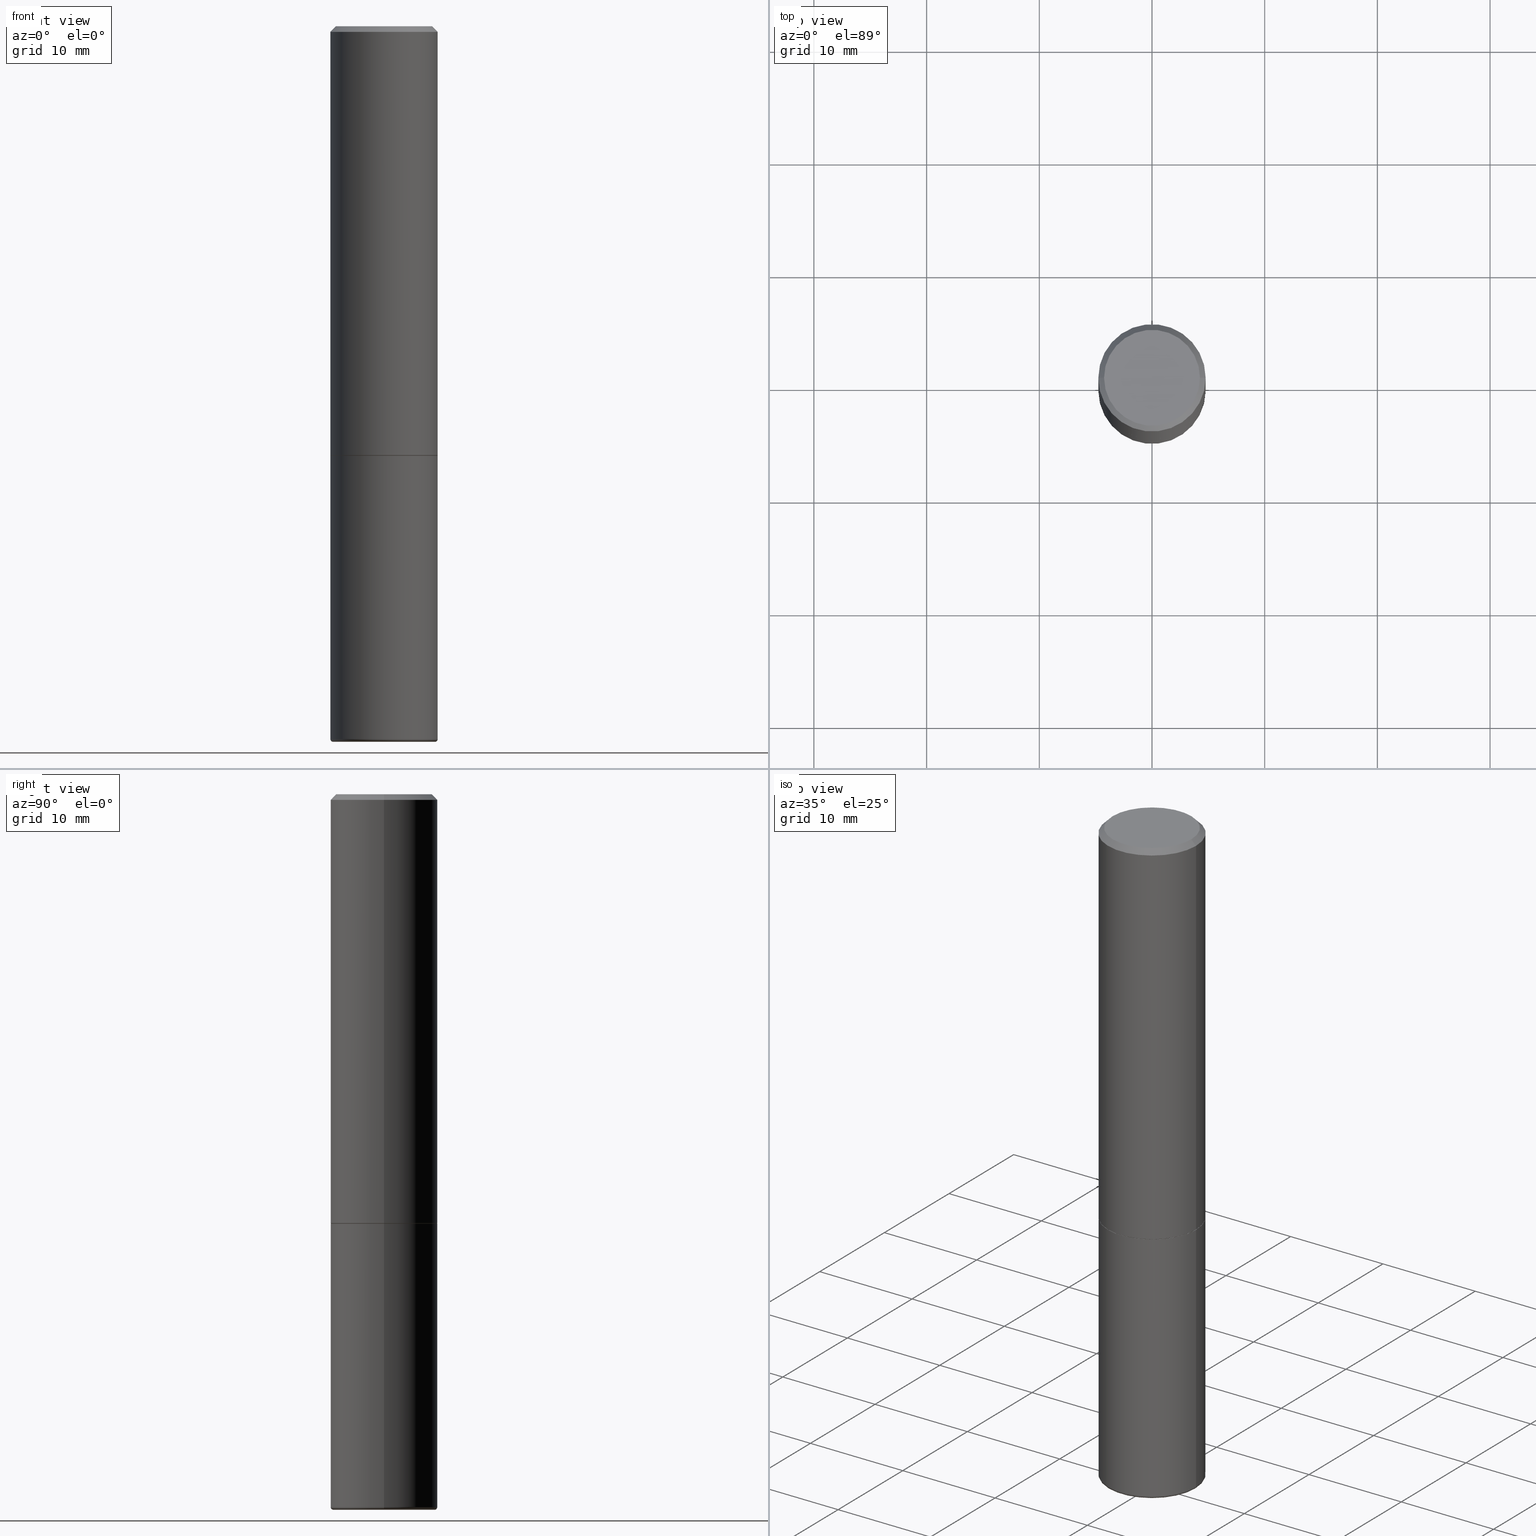
[diagram: canonical four-view strip — front | top / right | iso, engineering-drawing reading convention]
A machine part, canonical four-view strip (front | top / right | iso — engineering-drawing reading convention). The complete STEP part file that produces these views, byte-faithful:
ISO-10303-21;
HEADER;
FILE_DESCRIPTION (( 'STEP AP203' ),
    '1' );
FILE_NAME ('34776.STEP',
    '2022-11-02T20:16:07',
    ( '' ),
    ( '' ),
    'SwSTEP 2.0',
    'SolidWorks 2022',
    '' );
FILE_SCHEMA (( 'CONFIG_CONTROL_DESIGN' ));
ENDSEC;

DATA;
#1 = APPROVAL_PERSON_ORGANIZATION ( #27, #361, #67 ) ;
#2 = EDGE_LOOP ( 'NONE', ( #388, #482, #372 ) ) ;
#3 = CARTESIAN_POINT ( 'NONE',  ( 3.668203209277704895E-29, -5.237222008264718177E-15, -1.500000000000000222 ) ) ;
#4 = CARTESIAN_POINT ( 'NONE',  ( -0.1574139846450165192, -7.628878011552197220E-15, -2.499825473552769850 ) ) ;
#5 = DIRECTION ( 'NONE',  ( 1.000000000000000000, -6.982962677686269077E-15, 4.883557194083112901E-29 ) ) ;
#6 = DIRECTION ( 'NONE',  ( -1.000000000000000000, 6.982962677686265922E-15, 0.000000000000000000 ) ) ;
#7 = CIRCLE ( 'NONE', #485, 0.1574139846450165192 ) ;
#8 = ORIENTED_EDGE ( 'NONE', *, *, #346, .T. ) ;
#9 = DIRECTION ( 'NONE',  ( -0.9993908270190957621, 6.856857904024558837E-15, -0.03489949670250019204 ) ) ;
#10 = DIRECTION ( 'NONE',  ( 1.000000000000000000, -6.982962677686271444E-15, 0.000000000000000000 ) ) ;
#11 = DIRECTION ( 'NONE',  ( -1.000000000000000000, 6.982962677686262766E-15, 0.000000000000000000 ) ) ;
#12 = CARTESIAN_POINT ( 'NONE',  ( 3.668203209277704895E-29, -5.237222008264718177E-15, -1.500000000000000222 ) ) ;
#13 = ADVANCED_BREP_SHAPE_REPRESENTATION ( '34776', ( #249, #407, #324 ), #204 ) ;
#14 = CARTESIAN_POINT ( 'NONE',  ( -0.1774127346450165010, -7.489836842535454975E-15, -2.499999999999999556 ) ) ;
#15 = ORIENTED_EDGE ( 'NONE', *, *, #207, .F. ) ;
#16 = AXIS2_PLACEMENT_3D ( 'NONE', #358, #465, #479 ) ;
#17 = DIRECTION ( 'NONE',  ( -2.445468806185136597E-29, 3.491481338843145583E-15, 1.000000000000000000 ) ) ;
#18 = DATE_AND_TIME ( #325, #215 ) ;
#19 = EDGE_CURVE ( 'NONE', #432, #298, #376, .T. ) ;
#20 = VERTEX_POINT ( 'NONE', #304 ) ;
#21 = ADVANCED_FACE ( 'NONE', ( #374 ), #489, .F. ) ;
#22 = AXIS2_PLACEMENT_3D ( 'NONE', #230, #192, #449 ) ;
#23 = CIRCLE ( 'NONE', #90, 0.1674999999999994549 ) ;
#24 = CALENDAR_DATE ( 2022, 2, 11 ) ;
#25 = DATE_TIME_ROLE ( 'classification_date' ) ;
#26 = PERSON_AND_ORGANIZATION ( #306, #461 ) ;
#27 = PERSON_AND_ORGANIZATION ( #306, #461 ) ;
#28 = CIRCLE ( 'NONE', #133, 0.1674999999999994549 ) ;
#29 = CC_DESIGN_APPROVAL ( #164, ( #47 ) ) ;
#30 = SECURITY_CLASSIFICATION_LEVEL ( 'unclassified' ) ;
#31 = CC_DESIGN_PERSON_AND_ORGANIZATION_ASSIGNMENT ( #341, #202, ( #47 ) ) ;
#32 = DIRECTION ( 'NONE',  ( -2.445468806185136597E-29, 3.491481338843145583E-15, 1.000000000000000000 ) ) ;
#33 = PERSON_AND_ORGANIZATION_ROLE ( 'creator' ) ;
#34 = DIRECTION ( 'NONE',  ( 0.7071067811865465735, -7.319954787623252890E-15, -0.7071067811865484609 ) ) ;
#35 = LINE ( 'NONE', #116, #61 ) ;
#36 = COORDINATED_UNIVERSAL_TIME_OFFSET ( 5, 0, .BEHIND. ) ;
#37 = DIRECTION ( 'NONE',  ( -2.445468806185136597E-29, 3.491481338843145583E-15, 1.000000000000000000 ) ) ;
#38 = EDGE_LOOP ( 'NONE', ( #102, #232, #272, #124 ) ) ;
#39 = ORIENTED_EDGE ( 'NONE', *, *, #271, .F. ) ;
#40 = DIRECTION ( 'NONE',  ( 1.000000000000000000, -6.982962677686271444E-15, 0.000000000000000000 ) ) ;
#41 = DIRECTION ( 'NONE',  ( -2.445468806185136597E-29, 3.491481338843145583E-15, 1.000000000000000000 ) ) ;
#42 = DIRECTION ( 'NONE',  ( 2.445468806185136597E-29, -3.491481338843145583E-15, -1.000000000000000000 ) ) ;
#43 = APPLICATION_CONTEXT ( 'configuration controlled 3d designs of mechanical parts and assemblies' ) ;
#44 = DIRECTION ( 'NONE',  ( -2.445468806185136597E-29, 3.491481338843145583E-15, 1.000000000000000000 ) ) ;
#45 = AXIS2_PLACEMENT_3D ( 'NONE', #419, #59, #63 ) ;
#46 = VERTEX_POINT ( 'NONE', #161 ) ;
#47 = PRODUCT_DEFINITION ( 'UNKNOWN', '', #196, #454 ) ;
#48 = DIRECTION ( 'NONE',  ( -2.445468806185136597E-29, 3.491481338843145583E-15, 1.000000000000000000 ) ) ;
#49 = SECURITY_CLASSIFICATION ( '', '', #30 ) ;
#50 = CYLINDRICAL_SURFACE ( 'NONE', #261, 0.1874999999999996392 ) ;
#51 = UNCERTAINTY_MEASURE_WITH_UNIT (LENGTH_MEASURE( 1.000000000000000082E-05 ), #395, 'distance_accuracy_value', 'NONE');
#52 = ADVANCED_FACE ( 'NONE', ( #307 ), #113, .T. ) ;
#53 = ORIENTED_EDGE ( 'NONE', *, *, #91, .F. ) ;
#54 = ORIENTED_EDGE ( 'NONE', *, *, #81, .T. ) ;
#55 = ADVANCED_FACE ( 'NONE', ( #269 ), #156, .F. ) ;
#56 = DIRECTION ( 'NONE',  ( 1.000000000000000000, -6.982962677686184669E-15, 0.000000000000000000 ) ) ;
#57 = DIRECTION ( 'NONE',  ( 1.000000000000000000, -6.982962677686269077E-15, 0.000000000000000000 ) ) ;
#58 = VERTEX_POINT ( 'NONE', #471 ) ;
#59 = DIRECTION ( 'NONE',  ( -2.445468806185136597E-29, 3.491481338843145583E-15, 1.000000000000000000 ) ) ;
#60 = DIRECTION ( 'NONE',  ( -2.445468806185136877E-29, 3.491481338843145188E-15, 1.000000000000000000 ) ) ;
#61 = VECTOR ( 'NONE', #34, 39.37007874015748143 ) ;
#62 = VECTOR ( 'NONE', #127, 39.37007874015748143 ) ;
#63 = DIRECTION ( 'NONE',  ( 1.000000000000000000, -6.982962677686267499E-15, 4.876176775795935232E-29 ) ) ;
#64 = VERTEX_POINT ( 'NONE', #139 ) ;
#65 = DIRECTION ( 'NONE',  ( 1.000000000000000000, -6.982962677686264344E-15, 0.000000000000000000 ) ) ;
#66 = FACE_OUTER_BOUND ( 'NONE', #245, .T. ) ;
#67 = APPROVAL_ROLE ( '' ) ;
#68 = APPROVAL_ROLE ( '' ) ;
#69 = ADVANCED_FACE ( 'NONE', ( #351 ), #258, .T. ) ;
#70 = DIRECTION ( 'NONE',  ( -0.7071067811865465735, 2.468850131082246805E-15, -0.7071067811865484609 ) ) ;
#71 = EDGE_LOOP ( 'NONE', ( #416, #123 ) ) ;
#72 = CONICAL_SURFACE ( 'NONE', #120, 0.1874999999999995004, 0.7853981633974469467 ) ;
#73 = ORIENTED_EDGE ( 'NONE', *, *, #478, .T. ) ;
#74 = CIRCLE ( 'NONE', #295, 0.1874999999999995837 ) ;
#75 = DIRECTION ( 'NONE',  ( -1.000000000000000000, 7.105427357600977404E-15, 0.000000000000000000 ) ) ;
#76 = DIRECTION ( 'NONE',  ( 1.000000000000000000, -6.982962677686267499E-15, 4.876176775795935232E-29 ) ) ;
#77 = AXIS2_PLACEMENT_3D ( 'NONE', #136, #288, #138 ) ;
#78 = APPLICATION_CONTEXT ( 'configuration controlled 3d designs of mechanical parts and assemblies' ) ;
#79 = ORIENTED_EDGE ( 'NONE', *, *, #333, .F. ) ;
#80 = ORIENTED_EDGE ( 'NONE', *, *, #157, .T. ) ;
#81 = EDGE_CURVE ( 'NONE', #463, #457, #462, .T. ) ;
#82 = DIRECTION ( 'NONE',  ( 1.000000000000000000, -6.982962677686267499E-15, 4.876176775795935232E-29 ) ) ;
#83 = CARTESIAN_POINT ( 'NONE',  ( 0.1874999999999996392, -1.309305502066172642E-15, 9.142831454617361395E-30 ) ) ;
#84 = VECTOR ( 'NONE', #312, 39.37007874015748143 ) ;
#85 = CARTESIAN_POINT ( 'NONE',  ( 6.097968700781052334E-29, -8.711527264429354071E-15, -2.494328456080204148 ) ) ;
#86 = DIRECTION ( 'NONE',  ( -2.445468806185136597E-29, 3.491481338843145583E-15, 1.000000000000000000 ) ) ;
#87 = ORIENTED_EDGE ( 'NONE', *, *, #483, .T. ) ;
#88 = CARTESIAN_POINT ( 'NONE',  ( -0.1874999999999996392, 1.332267629550185285E-15, -9.223003294227931175E-30 ) ) ;
#89 = CC_DESIGN_PERSON_AND_ORGANIZATION_ASSIGNMENT ( #194, #145, ( #467 ) ) ;
#90 = AXIS2_PLACEMENT_3D ( 'NONE', #205, #338, #132 ) ;
#91 = EDGE_CURVE ( 'NONE', #444, #58, #35, .T. ) ;
#92 = VERTEX_POINT ( 'NONE', #155 ) ;
#93 = DIRECTION ( 'NONE',  ( 1.000000000000000000, -6.982962677686264344E-15, 0.000000000000000000 ) ) ;
#94 = APPROVAL_PERSON_ORGANIZATION ( #117, #164, #112 ) ;
#95 = CARTESIAN_POINT ( 'NONE',  ( 3.668203209277704895E-29, -5.237222008264718177E-15, -1.500000000000000222 ) ) ;
#96 = LINE ( 'NONE', #315, #84 ) ;
#97 = EDGE_LOOP ( 'NONE', ( #208, #487, #421, #375 ) ) ;
#98 = LINE ( 'NONE', #364, #335 ) ;
#99 = CONICAL_SURFACE ( 'NONE', #273, 0.1864999999999996938, 0.7853981633974141952 ) ;
#100 = CARTESIAN_POINT ( 'NONE',  ( 0.1874999999999995837, -1.000309536523471494E-14, -2.490000380769358479 ) ) ;
#101 = APPROVAL_STATUS ( 'not_yet_approved' ) ;
#102 = ORIENTED_EDGE ( 'NONE', *, *, #415, .T. ) ;
#103 = TOROIDAL_SURFACE ( 'NONE', #195, 0.1775000000000001854, 0.009999999999999658468 ) ;
#104 = DIRECTION ( 'NONE',  ( 1.000000000000000000, -6.982962677686269077E-15, 4.883557194083112901E-29 ) ) ;
#105 = DIRECTION ( 'NONE',  ( 0.000000000000000000, 0.000000000000000000, 1.000000000000000000 ) ) ;
#106 = EDGE_CURVE ( 'NONE', #302, #457, #439, .T. ) ;
#107 = VERTEX_POINT ( 'NONE', #85 ) ;
#108 = ADVANCED_FACE ( 'NONE', ( #213 ), #99, .T. ) ;
#109 = PERSON_AND_ORGANIZATION_ROLE ( 'design_supplier' ) ;
#110 = ORIENTED_EDGE ( 'NONE', *, *, #244, .F. ) ;
#111 = AXIS2_PLACEMENT_3D ( 'NONE', #209, #235, #11 ) ;
#112 = APPROVAL_ROLE ( '' ) ;
#113 = CYLINDRICAL_SURFACE ( 'NONE', #360, 0.1874999999999996392 ) ;
#114 = CARTESIAN_POINT ( 'NONE',  ( -0.1874999999999995837, -5.633238306166445543E-15, -2.490000380769358479 ) ) ;
#115 = CARTESIAN_POINT ( 'NONE',  ( 0.000000000000000000, 0.000000000000000000, 0.000000000000000000 ) ) ;
#116 = CARTESIAN_POINT ( 'NONE',  ( 0.1874999999999995004, -1.356173001359022113E-15, -0.02000000000000011144 ) ) ;
#117 = PERSON_AND_ORGANIZATION ( #306, #461 ) ;
#118 = ORIENTED_EDGE ( 'NONE', *, *, #106, .F. ) ;
#119 = ADVANCED_FACE ( 'NONE', ( #172 ), #72, .T. ) ;
#120 = AXIS2_PLACEMENT_3D ( 'NONE', #340, #389, #355 ) ;
#121 = CARTESIAN_POINT ( 'NONE',  ( 3.668203209277704895E-29, -5.237222008264718177E-15, -1.500000000000000222 ) ) ;
#122 = CARTESIAN_POINT ( 'NONE',  ( 3.668203209277704895E-29, -5.237222008264718177E-15, -1.500000000000000222 ) ) ;
#123 = ORIENTED_EDGE ( 'NONE', *, *, #254, .T. ) ;
#124 = ORIENTED_EDGE ( 'NONE', *, *, #81, .F. ) ;
#125 = EDGE_CURVE ( 'NONE', #20, #58, #179, .T. ) ;
#126 = LINE ( 'NONE', #88, #440 ) ;
#127 = DIRECTION ( 'NONE',  ( 0.9993908270190957621, -6.978169709227539121E-15, -0.03489949670250019204 ) ) ;
#128 = CARTESIAN_POINT ( 'NONE',  ( 6.089218258560578567E-29, -8.693789863168541507E-15, -2.490000380769358479 ) ) ;
#129 = EDGE_LOOP ( 'NONE', ( #135, #229, #224, #363 ) ) ;
#130 = EDGE_LOOP ( 'NONE', ( #403, #256, #134, #79 ) ) ;
#131 = CARTESIAN_POINT ( 'NONE',  ( -1.043851414335219820E-46, 1.490343170380447200E-32, 4.268512490100411279E-18 ) ) ;
#132 = DIRECTION ( 'NONE',  ( 1.000000000000000000, -6.982962677686265133E-15, 4.875936752492908897E-29 ) ) ;
#133 = AXIS2_PLACEMENT_3D ( 'NONE', #131, #143, #331 ) ;
#134 = ORIENTED_EDGE ( 'NONE', *, *, #451, .F. ) ;
#135 = ORIENTED_EDGE ( 'NONE', *, *, #147, .T. ) ;
#136 = CARTESIAN_POINT ( 'NONE',  ( 3.665757740471519853E-29, -5.233730526925875958E-15, -1.499000000000000110 ) ) ;
#137 = ADVANCED_FACE ( 'NONE', ( #474 ), #103, .T. ) ;
#138 = DIRECTION ( 'NONE',  ( 1.000000000000000000, -6.982962677686264344E-15, 0.000000000000000000 ) ) ;
#139 = CARTESIAN_POINT ( 'NONE',  ( 0.1874999999999996947, -6.543036028992048600E-15, -1.499000000000000110 ) ) ;
#140 = DIRECTION ( 'NONE',  ( 1.000000000000000000, -6.982962677686262766E-15, 0.000000000000000000 ) ) ;
#141 =( NAMED_UNIT ( * ) SI_UNIT ( $, .STERADIAN. ) SOLID_ANGLE_UNIT ( ) );
#142 = DATE_AND_TIME ( #476, #246 ) ;
#143 = DIRECTION ( 'NONE',  ( -2.445468806185136597E-29, 3.491481338843145583E-15, 1.000000000000000000 ) ) ;
#144 = VERTEX_POINT ( 'NONE', #276 ) ;
#145 = PERSON_AND_ORGANIZATION_ROLE ( 'design_owner' ) ;
#146 = DIRECTION ( 'NONE',  ( 1.000000000000000000, -6.982962677686262766E-15, 0.000000000000000000 ) ) ;
#147 = EDGE_CURVE ( 'NONE', #484, #144, #378, .T. ) ;
#148 = ORIENTED_EDGE ( 'NONE', *, *, #19, .T. ) ;
#149 = DIRECTION ( 'NONE',  ( -0.7071067811865232589, 7.493145998870265808E-15, 0.7071067811865715536 ) ) ;
#150 = CARTESIAN_POINT ( 'NONE',  ( 6.089218258560578567E-29, -8.693789863168541507E-15, -2.490000380769358479 ) ) ;
#151 = AXIS2_PLACEMENT_3D ( 'NONE', #292, #265, #75 ) ;
#152 = CARTESIAN_POINT ( 'NONE',  ( 0.000000000000000000, 0.000000000000000000, 0.000000000000000000 ) ) ;
#153 = APPROVAL_DATE_TIME ( #438, #361 ) ;
#154 = CARTESIAN_POINT ( 'NONE',  ( 6.089218258560578567E-29, -8.693789863168541507E-15, -2.490000380769358479 ) ) ;
#155 = CARTESIAN_POINT ( 'NONE',  ( -0.1874999999999996947, -5.633238306166445543E-15, -1.500000000000000222 ) ) ;
#156 = CONICAL_SURFACE ( 'NONE', #332, 0.1574139846450165192, 1.535889741755010807 ) ;
#157 = EDGE_CURVE ( 'NONE', #457, #302, #252, .T. ) ;
#158 = DIRECTION ( 'NONE',  ( -1.000000000000000000, 6.982962677686265922E-15, 0.000000000000000000 ) ) ;
#159 = CIRCLE ( 'NONE', #151, 0.009999999999999654998 ) ;
#160 = DATE_AND_TIME ( #491, #412 ) ;
#161 = CARTESIAN_POINT ( 'NONE',  ( 0.1874999999999996947, -6.546527510330890818E-15, -1.500000000000000222 ) ) ;
#162 = EDGE_LOOP ( 'NONE', ( #447, #279, #468, #175 ) ) ;
#163 = CARTESIAN_POINT ( 'NONE',  ( 0.1574139846450165192, -9.808032317752600483E-15, -2.499825473552769850 ) ) ;
#164 = APPROVAL ( #446, 'UNSPECIFIED' ) ;
#165 = CARTESIAN_POINT ( 'NONE',  ( 0.1775000000000001854, -9.933265738457854795E-15, -2.490000380769358479 ) ) ;
#166 = CLOSED_SHELL ( 'NONE', ( #413, #137, #452, #268, #55, #187, #52, #370, #460 ) ) ;
#167 = CARTESIAN_POINT ( 'NONE',  ( -0.1574139846450165192, -7.628878011552197220E-15, -2.499825473552769850 ) ) ;
#168 = AXIS2_PLACEMENT_3D ( 'NONE', #443, #193, #158 ) ;
#169 = COORDINATED_UNIVERSAL_TIME_OFFSET ( 5, 0, .BEHIND. ) ;
#170 = EDGE_LOOP ( 'NONE', ( #15, #73, #377, #257 ) ) ;
#171 = CARTESIAN_POINT ( 'NONE',  ( 6.113245216480286544E-29, -8.728093991274226772E-15, -2.499825473552769850 ) ) ;
#172 = FACE_OUTER_BOUND ( 'NONE', #191, .T. ) ;
#173 = FACE_OUTER_BOUND ( 'NONE', #383, .T. ) ;
#174 = ORIENTED_EDGE ( 'NONE', *, *, #390, .F. ) ;
#175 = ORIENTED_EDGE ( 'NONE', *, *, #125, .F. ) ;
#176 = LINE ( 'NONE', #163, #62 ) ;
#177 = ORIENTED_EDGE ( 'NONE', *, *, #183, .F. ) ;
#178 = AXIS2_PLACEMENT_3D ( 'NONE', #424, #285, #251 ) ;
#179 = CIRCLE ( 'NONE', #259, 0.1874999999999995004 ) ;
#180 = CARTESIAN_POINT ( 'NONE',  ( 4.890937612370301184E-31, -6.982962677686329819E-17, -0.02000000000000011144 ) ) ;
#181 =( NAMED_UNIT ( * ) PLANE_ANGLE_UNIT ( ) SI_UNIT ( $, .RADIAN. ) );
#182 = CARTESIAN_POINT ( 'NONE',  ( 0.1674999999999994549, -1.252653207992874936E-15, 4.268512490108880748E-18 ) ) ;
#183 = EDGE_CURVE ( 'NONE', #302, #432, #223, .T. ) ;
#184 = APPROVAL_DATE_TIME ( #18, #217 ) ;
#185 = CLOSED_SHELL ( 'NONE', ( #108, #231, #69, #119, #437, #287, #366, #21 ) ) ;
#186 = CIRCLE ( 'NONE', #303, 0.1874999999999996947 ) ;
#187 = ADVANCED_FACE ( 'NONE', ( #385 ), #274, .F. ) ;
#188 = COORDINATED_UNIVERSAL_TIME_OFFSET ( 5, 0, .BEHIND. ) ;
#189 = LENGTH_MEASURE_WITH_UNIT ( LENGTH_MEASURE( 0.02539999999999999897 ), #253 );
#190 = CIRCLE ( 'NONE', #327, 0.1874999999999996947 ) ;
#191 = EDGE_LOOP ( 'NONE', ( #53, #326, #87, #320 ) ) ;
#192 = DIRECTION ( 'NONE',  ( 2.438088387897960049E-29, -3.491481338843145188E-15, -1.000000000000000000 ) ) ;
#193 = DIRECTION ( 'NONE',  ( 2.445468806185136597E-29, -3.491481338843145583E-15, -1.000000000000000000 ) ) ;
#194 = PERSON_AND_ORGANIZATION ( #306, #461 ) ;
#195 = AXIS2_PLACEMENT_3D ( 'NONE', #314, #200, #5 ) ;
#196 = PRODUCT_DEFINITION_FORMATION_WITH_SPECIFIED_SOURCE ( 'ANY', '', #467, .NOT_KNOWN. ) ;
#197 = FACE_OUTER_BOUND ( 'NONE', #130, .T. ) ;
#198 = CARTESIAN_POINT ( 'NONE',  ( 3.668203209277704895E-29, -5.237222008264718177E-15, -1.500000000000000222 ) ) ;
#199 = EDGE_CURVE ( 'NONE', #484, #64, #349, .T. ) ;
#200 = DIRECTION ( 'NONE',  ( -2.445468806185136597E-29, 3.491481338843145583E-15, 1.000000000000000000 ) ) ;
#201 = AXIS2_PLACEMENT_3D ( 'NONE', #392, #214, #65 ) ;
#202 = PERSON_AND_ORGANIZATION_ROLE ( 'creator' ) ;
#203 = ORIENTED_EDGE ( 'NONE', *, *, #207, .T. ) ;
#204 =( GEOMETRIC_REPRESENTATION_CONTEXT ( 3 ) GLOBAL_UNCERTAINTY_ASSIGNED_CONTEXT ( ( #51 ) ) GLOBAL_UNIT_ASSIGNED_CONTEXT ( ( #395, #181, #141 ) ) REPRESENTATION_CONTEXT ( 'NONE', 'WORKASPACE' ) );
#205 = CARTESIAN_POINT ( 'NONE',  ( -1.043851414335219820E-46, 1.490343170380447200E-32, 4.268512490100411279E-18 ) ) ;
#206 = CARTESIAN_POINT ( 'NONE',  ( 0.000000000000000000, 0.000000000000000000, 0.000000000000000000 ) ) ;
#207 = EDGE_CURVE ( 'NONE', #298, #92, #126, .T. ) ;
#208 = ORIENTED_EDGE ( 'NONE', *, *, #490, .F. ) ;
#209 = CARTESIAN_POINT ( 'NONE',  ( 6.113245216480286544E-29, -8.728093991274226772E-15, -2.499825473552769850 ) ) ;
#210 = CYLINDRICAL_SURFACE ( 'NONE', #45, 0.1874999999999996114 ) ;
#211 = EDGE_LOOP ( 'NONE', ( #433, #80, #348, #212 ) ) ;
#212 = ORIENTED_EDGE ( 'NONE', *, *, #478, .F. ) ;
#213 = FACE_OUTER_BOUND ( 'NONE', #129, .T. ) ;
#214 = DIRECTION ( 'NONE',  ( -2.445468806185136597E-29, 3.491481338843145583E-15, 1.000000000000000000 ) ) ;
#215 = LOCAL_TIME ( 16, 16, 7.000000000000000000, #188 ) ;
#216 = FACE_OUTER_BOUND ( 'NONE', #211, .T. ) ;
#217 = APPROVAL ( #101, 'UNSPECIFIED' ) ;
#218 = EDGE_CURVE ( 'NONE', #466, #444, #28, .T. ) ;
#219 = COORDINATED_UNIVERSAL_TIME_OFFSET ( 5, 0, .BEHIND. ) ;
#220 = APPLICATION_PROTOCOL_DEFINITION ( 'international standard', 'config_control_design', 1994, #78 ) ;
#221 = ORIENTED_EDGE ( 'NONE', *, *, #451, .T. ) ;
#222 = CARTESIAN_POINT ( 'NONE',  ( 0.1864999999999996938, -6.539544547653205593E-15, -1.500000000000000222 ) ) ;
#223 = CIRCLE ( 'NONE', #470, 0.009999999999999654998 ) ;
#224 = ORIENTED_EDGE ( 'NONE', *, *, #425, .F. ) ;
#225 = EDGE_CURVE ( 'NONE', #107, #402, #176, .T. ) ;
#226 = CARTESIAN_POINT ( 'NONE',  ( 0.1774127346450165010, -9.945843057919171254E-15, -2.499999999999999556 ) ) ;
#227 = DIRECTION ( 'NONE',  ( 1.000000000000000000, -6.982962677686268288E-15, 0.000000000000000000 ) ) ;
#228 = TOROIDAL_SURFACE ( 'NONE', #293, 0.1775000000000001854, 0.009999999999999658468 ) ;
#229 = ORIENTED_EDGE ( 'NONE', *, *, #490, .T. ) ;
#230 = CARTESIAN_POINT ( 'NONE',  ( 1.169646248512445651E-15, 0.1674999999999994549, -5.826888680111746828E-16 ) ) ;
#231 = ADVANCED_FACE ( 'NONE', ( #197 ), #453, .T. ) ;
#232 = ORIENTED_EDGE ( 'NONE', *, *, #390, .T. ) ;
#233 = AXIS2_PLACEMENT_3D ( 'NONE', #337, #37, #10 ) ;
#234 = CONICAL_SURFACE ( 'NONE', #282, 0.1864999999999996938, 0.7853981633974141952 ) ;
#235 = DIRECTION ( 'NONE',  ( 2.445468806185136597E-29, -3.491481338843145583E-15, -1.000000000000000000 ) ) ;
#236 = DIRECTION ( 'NONE',  ( -1.000000000000000000, 6.982962677686262766E-15, 0.000000000000000000 ) ) ;
#237 = FACE_OUTER_BOUND ( 'NONE', #97, .T. ) ;
#238 = DIRECTION ( 'NONE',  ( 2.438088387897960049E-29, -3.491481338843145188E-15, -1.000000000000000000 ) ) ;
#239 = DIRECTION ( 'NONE',  ( -2.445468806185136597E-29, 3.491481338843145583E-15, 1.000000000000000000 ) ) ;
#240 = ORIENTED_EDGE ( 'NONE', *, *, #291, .F. ) ;
#241 = ORIENTED_EDGE ( 'NONE', *, *, #319, .T. ) ;
#242 = DIRECTION ( 'NONE',  ( 1.000000000000000000, -6.982962677686269077E-15, 0.000000000000000000 ) ) ;
#243 = AXIS2_PLACEMENT_3D ( 'NONE', #414, #238, #381 ) ;
#244 = EDGE_CURVE ( 'NONE', #432, #46, #456, .T. ) ;
#245 = EDGE_LOOP ( 'NONE', ( #148, #203, #39, #110 ) ) ;
#246 = LOCAL_TIME ( 16, 16, 7.000000000000000000, #365 ) ;
#247 = DIRECTION ( 'NONE',  ( -2.445468806185136597E-29, 3.491481338843145583E-15, 1.000000000000000000 ) ) ;
#248 = DIRECTION ( 'NONE',  ( 1.000000000000000000, -6.982962677686269077E-15, 0.000000000000000000 ) ) ;
#249 = MANIFOLD_SOLID_BREP ( 'Body-Move/Copy2[1]', #166 ) ;
#250 = CARTESIAN_POINT ( 'NONE',  ( -0.1874999999999995004, 1.239475875289308357E-15, -0.02000000000000011144 ) ) ;
#251 = DIRECTION ( 'NONE',  ( -1.000000000000000000, 6.982962677686267499E-15, 0.000000000000000000 ) ) ;
#252 = CIRCLE ( 'NONE', #393, 0.1774127346450165010 ) ;
#253 =( LENGTH_UNIT ( ) NAMED_UNIT ( * ) SI_UNIT ( $, .METRE. ) );
#254 = EDGE_CURVE ( 'NONE', #444, #466, #23, .T. ) ;
#255 = DIRECTION ( 'NONE',  ( -2.445468806185136597E-29, 3.491481338843145583E-15, 1.000000000000000000 ) ) ;
#256 = ORIENTED_EDGE ( 'NONE', *, *, #339, .T. ) ;
#257 = ORIENTED_EDGE ( 'NONE', *, *, #319, .F. ) ;
#258 = CONICAL_SURFACE ( 'NONE', #178, 0.1874999999999995004, 0.7853981633974469467 ) ;
#259 = AXIS2_PLACEMENT_3D ( 'NONE', #180, #380, #423 ) ;
#260 = DIRECTION ( 'NONE',  ( 1.000000000000000000, -6.982962677686269077E-15, 0.000000000000000000 ) ) ;
#261 = AXIS2_PLACEMENT_3D ( 'NONE', #206, #262, #76 ) ;
#262 = DIRECTION ( 'NONE',  ( -2.445468806185136597E-29, 3.491481338843145583E-15, 1.000000000000000000 ) ) ;
#263 = DIMENSIONAL_EXPONENTS ( 1.000000000000000000, 0.000000000000000000, 0.000000000000000000, 0.000000000000000000, 0.000000000000000000, 0.000000000000000000, 0.000000000000000000 ) ;
#264 = APPROVAL_PERSON_ORGANIZATION ( #26, #217, #68 ) ;
#265 = DIRECTION ( 'NONE',  ( 7.105427357601001859E-15, 1.000000000000000000, -3.491481338843145583E-15 ) ) ;
#266 = CC_DESIGN_DATE_AND_TIME_ASSIGNMENT ( #426, #368, ( #47 ) ) ;
#267 = CIRCLE ( 'NONE', #400, 0.1874999999999995004 ) ;
#268 = ADVANCED_FACE ( 'NONE', ( #350 ), #384, .F. ) ;
#269 = FACE_OUTER_BOUND ( 'NONE', #316, .T. ) ;
#270 = LOCAL_TIME ( 16, 16, 7.000000000000000000, #219 ) ;
#271 = EDGE_CURVE ( 'NONE', #46, #92, #190, .T. ) ;
#272 = ORIENTED_EDGE ( 'NONE', *, *, #157, .F. ) ;
#273 = AXIS2_PLACEMENT_3D ( 'NONE', #95, #281, #248 ) ;
#274 = PLANE ( 'NONE',  #243 ) ;
#275 = CARTESIAN_POINT ( 'NONE',  ( -0.1674999999999994549, 1.204561061900876905E-15, 4.268512490092109750E-18 ) ) ;
#276 = CARTESIAN_POINT ( 'NONE',  ( -0.1864999999999996938, -3.906761351723911301E-15, -1.500000000000000222 ) ) ;
#277 = ORIENTED_EDGE ( 'NONE', *, *, #346, .F. ) ;
#278 = CC_DESIGN_PERSON_AND_ORGANIZATION_ASSIGNMENT ( #280, #109, ( #196 ) ) ;
#279 = ORIENTED_EDGE ( 'NONE', *, *, #431, .T. ) ;
#280 = PERSON_AND_ORGANIZATION ( #306, #461 ) ;
#281 = DIRECTION ( 'NONE',  ( -2.445468806185136597E-29, 3.491481338843145583E-15, 1.000000000000000000 ) ) ;
#282 = AXIS2_PLACEMENT_3D ( 'NONE', #3, #41, #57 ) ;
#283 = DIRECTION ( 'NONE',  ( 1.000000000000000000, -6.982962677686264344E-15, 0.000000000000000000 ) ) ;
#284 = PRODUCT_DEFINITION_SHAPE ( 'NONE', 'NONE',  #47 ) ;
#285 = DIRECTION ( 'NONE',  ( 2.445468806185136597E-29, -3.491481338843145583E-15, -1.000000000000000000 ) ) ;
#286 = PLANE ( 'NONE',  #16 ) ;
#287 = ADVANCED_FACE ( 'NONE', ( #237 ), #234, .T. ) ;
#288 = DIRECTION ( 'NONE',  ( -2.445468806185136597E-29, 3.491481338843145583E-15, 1.000000000000000000 ) ) ;
#289 = CIRCLE ( 'NONE', #77, 0.1874999999999996947 ) ;
#290 = CC_DESIGN_APPROVAL ( #361, ( #196 ) ) ;
#291 = EDGE_CURVE ( 'NONE', #144, #484, #323, .T. ) ;
#292 = CARTESIAN_POINT ( 'NONE',  ( -0.1775000000000001854, -7.432576507194362163E-15, -2.490000380769358479 ) ) ;
#293 = AXIS2_PLACEMENT_3D ( 'NONE', #150, #441, #104 ) ;
#294 = CARTESIAN_POINT ( 'NONE',  ( 0.1574139846450165192, -9.808032317752600483E-15, -2.499825473552769850 ) ) ;
#295 = AXIS2_PLACEMENT_3D ( 'NONE', #128, #311, #227 ) ;
#296 = PERSON_AND_ORGANIZATION_ROLE ( 'classification_officer' ) ;
#297 = MECHANICAL_CONTEXT ( 'NONE', #43, 'mechanical' ) ;
#298 = VERTEX_POINT ( 'NONE', #114 ) ;
#299 = FACE_OUTER_BOUND ( 'NONE', #38, .T. ) ;
#300 = CC_DESIGN_DATE_AND_TIME_ASSIGNMENT ( #142, #25, ( #49 ) ) ;
#301 = EDGE_CURVE ( 'NONE', #107, #463, #455, .T. ) ;
#302 = VERTEX_POINT ( 'NONE', #352 ) ;
#303 = AXIS2_PLACEMENT_3D ( 'NONE', #12, #44, #283 ) ;
#304 = CARTESIAN_POINT ( 'NONE',  ( -0.1874999999999995004, 1.239475875289308357E-15, -0.02000000000000011144 ) ) ;
#305 = APPROVAL_DATE_TIME ( #160, #164 ) ;
#306 = PERSON ( 'UNSPECIFIED', 'UNSPECIFIED', 'UNSPECIFIED', ('UNSPECIFIED'), ('UNSPECIFIED'), ('UNSPECIFIED') ) ;
#307 = FACE_OUTER_BOUND ( 'NONE', #170, .T. ) ;
#308 = AXIS2_PLACEMENT_3D ( 'NONE', #318, #48, #410 ) ;
#309 = DIRECTION ( 'NONE',  ( -6.982962677686266711E-15, -1.000000000000000000, 3.491481338843145583E-15 ) ) ;
#310 = DIRECTION ( 'NONE',  ( -2.445468806185136597E-29, 3.491481338843145583E-15, 1.000000000000000000 ) ) ;
#311 = DIRECTION ( 'NONE',  ( -2.445468806185136597E-29, 3.491481338843145583E-15, 1.000000000000000000 ) ) ;
#312 = DIRECTION ( 'NONE',  ( -2.445468806185136877E-29, 3.491481338843145188E-15, 1.000000000000000000 ) ) ;
#313 = ORIENTED_EDGE ( 'NONE', *, *, #483, .F. ) ;
#314 = CARTESIAN_POINT ( 'NONE',  ( 6.089218258560578567E-29, -8.693789863168541507E-15, -2.490000380769358479 ) ) ;
#315 = CARTESIAN_POINT ( 'NONE',  ( -0.1874999999999996114, 1.332267629550185087E-15, -9.223003294227929774E-30 ) ) ;
#316 = EDGE_LOOP ( 'NONE', ( #347, #336, #277 ) ) ;
#317 = DIRECTION ( 'NONE',  ( -2.445468806185136877E-29, 3.491481338843145188E-15, 1.000000000000000000 ) ) ;
#318 = CARTESIAN_POINT ( 'NONE',  ( 0.000000000000000000, 0.000000000000000000, 0.000000000000000000 ) ) ;
#319 = EDGE_CURVE ( 'NONE', #92, #46, #186, .T. ) ;
#320 = ORIENTED_EDGE ( 'NONE', *, *, #125, .T. ) ;
#321 = DIRECTION ( 'NONE',  ( 2.445468806185136597E-29, -3.491481338843145583E-15, -1.000000000000000000 ) ) ;
#322 = DIRECTION ( 'NONE',  ( -2.445468806185136597E-29, 3.491481338843145583E-15, 1.000000000000000000 ) ) ;
#323 = CIRCLE ( 'NONE', #411, 0.1864999999999996938 ) ;
#324 = AXIS2_PLACEMENT_3D ( 'NONE', #152, #105, #401 ) ;
#325 = CALENDAR_DATE ( 2022, 2, 11 ) ;
#326 = ORIENTED_EDGE ( 'NONE', *, *, #218, .F. ) ;
#327 = AXIS2_PLACEMENT_3D ( 'NONE', #122, #239, #93 ) ;
#328 = VERTEX_POINT ( 'NONE', #473 ) ;
#329 = CONICAL_SURFACE ( 'NONE', #394, 0.1774127346450165010, 1.562069680534970972 ) ;
#330 = DIRECTION ( 'NONE',  ( 1.000000000000000000, -6.982962677686268288E-15, 0.000000000000000000 ) ) ;
#331 = DIRECTION ( 'NONE',  ( 1.000000000000000000, -6.982962677686265133E-15, 4.875936752492908897E-29 ) ) ;
#332 = AXIS2_PLACEMENT_3D ( 'NONE', #367, #321, #236 ) ;
#333 = EDGE_CURVE ( 'NONE', #64, #58, #475, .T. ) ;
#334 = EDGE_LOOP ( 'NONE', ( #386, #408, #221, #313 ) ) ;
#335 = VECTOR ( 'NONE', #149, 39.37007874015748854 ) ;
#336 = ORIENTED_EDGE ( 'NONE', *, *, #301, .T. ) ;
#337 = CARTESIAN_POINT ( 'NONE',  ( 6.113672015462840371E-29, -8.728703347107863365E-15, -2.499999999999999556 ) ) ;
#338 = DIRECTION ( 'NONE',  ( -2.445468806185136597E-29, 3.491481338843145583E-15, 1.000000000000000000 ) ) ;
#339 = EDGE_CURVE ( 'NONE', #328, #20, #96, .T. ) ;
#340 = CARTESIAN_POINT ( 'NONE',  ( 4.890937612370301184E-31, -6.982962677686329819E-17, -0.02000000000000011144 ) ) ;
#341 = PERSON_AND_ORGANIZATION ( #306, #461 ) ;
#342 = ORIENTED_EDGE ( 'NONE', *, *, #271, .T. ) ;
#343 = VECTOR ( 'NONE', #464, 39.37007874015748854 ) ;
#344 = CARTESIAN_POINT ( 'NONE',  ( 0.1864999999999996938, -6.539544547653205593E-15, -1.500000000000000222 ) ) ;
#345 = CARTESIAN_POINT ( 'NONE',  ( 6.113245216480286544E-29, -8.728093991274226772E-15, -2.499825473552769850 ) ) ;
#346 = EDGE_CURVE ( 'NONE', #402, #463, #399, .T. ) ;
#347 = ORIENTED_EDGE ( 'NONE', *, *, #225, .F. ) ;
#348 = ORIENTED_EDGE ( 'NONE', *, *, #183, .T. ) ;
#349 = LINE ( 'NONE', #344, #343 ) ;
#350 = FACE_OUTER_BOUND ( 'NONE', #2, .T. ) ;
#351 = FACE_OUTER_BOUND ( 'NONE', #334, .T. ) ;
#352 = CARTESIAN_POINT ( 'NONE',  ( 0.1774127346450165010, -9.967569851680271755E-15, -2.499999999999999556 ) ) ;
#353 = EDGE_LOOP ( 'NONE', ( #459, #357, #382, #177 ) ) ;
#354 = CARTESIAN_POINT ( 'NONE',  ( 6.113672015462840371E-29, -8.728703347107863365E-15, -2.499999999999999556 ) ) ;
#355 = DIRECTION ( 'NONE',  ( -1.000000000000000000, 6.982962677686267499E-15, 0.000000000000000000 ) ) ;
#356 = VECTOR ( 'NONE', #406, 39.37007874015748854 ) ;
#357 = ORIENTED_EDGE ( 'NONE', *, *, #387, .T. ) ;
#358 = CARTESIAN_POINT ( 'NONE',  ( 3.668203209277704895E-29, -5.237222008264718177E-15, -1.500000000000000222 ) ) ;
#359 = SHAPE_DEFINITION_REPRESENTATION ( #284, #13 ) ;
#360 = AXIS2_PLACEMENT_3D ( 'NONE', #115, #409, #82 ) ;
#361 = APPROVAL ( #397, 'UNSPECIFIED' ) ;
#362 = AXIS2_PLACEMENT_3D ( 'NONE', #345, #17, #140 ) ;
#363 = ORIENTED_EDGE ( 'NONE', *, *, #199, .F. ) ;
#364 = CARTESIAN_POINT ( 'NONE',  ( -0.1864999999999996938, -3.912059806072133703E-15, -1.500000000000000222 ) ) ;
#365 = COORDINATED_UNIVERSAL_TIME_OFFSET ( 5, 0, .BEHIND. ) ;
#366 = ADVANCED_FACE ( 'NONE', ( #173 ), #286, .F. ) ;
#367 = CARTESIAN_POINT ( 'NONE',  ( 6.113245216480286544E-29, -8.728093991274226772E-15, -2.499825473552769850 ) ) ;
#368 = DATE_TIME_ROLE ( 'creation_date' ) ;
#369 = CARTESIAN_POINT ( 'NONE',  ( -0.1774127346450165010, -7.414816141196355644E-15, -2.499999999999999556 ) ) ;
#370 = ADVANCED_FACE ( 'NONE', ( #216 ), #228, .T. ) ;
#371 = VECTOR ( 'NONE', #9, 39.37007874015748143 ) ;
#372 = ORIENTED_EDGE ( 'NONE', *, *, #415, .F. ) ;
#373 = LINE ( 'NONE', #250, #450 ) ;
#374 = FACE_OUTER_BOUND ( 'NONE', #71, .T. ) ;
#375 = ORIENTED_EDGE ( 'NONE', *, *, #431, .F. ) ;
#376 = CIRCLE ( 'NONE', #445, 0.1874999999999995837 ) ;
#377 = ORIENTED_EDGE ( 'NONE', *, *, #244, .T. ) ;
#378 = CIRCLE ( 'NONE', #458, 0.1864999999999996938 ) ;
#379 = EDGE_LOOP ( 'NONE', ( #342, #241 ) ) ;
#380 = DIRECTION ( 'NONE',  ( -2.445468806185136597E-29, 3.491481338843145583E-15, 1.000000000000000000 ) ) ;
#381 = DIRECTION ( 'NONE',  ( -1.000000000000000000, 6.982962677686265922E-15, -4.876176775795935793E-29 ) ) ;
#382 = ORIENTED_EDGE ( 'NONE', *, *, #19, .F. ) ;
#383 = EDGE_LOOP ( 'NONE', ( #427, #240 ) ) ;
#384 = CONICAL_SURFACE ( 'NONE', #111, 0.1574139846450165192, 1.535889741755010807 ) ;
#385 = FACE_OUTER_BOUND ( 'NONE', #379, .T. ) ;
#386 = ORIENTED_EDGE ( 'NONE', *, *, #254, .F. ) ;
#387 = EDGE_CURVE ( 'NONE', #457, #298, #159, .T. ) ;
#388 = ORIENTED_EDGE ( 'NONE', *, *, #301, .F. ) ;
#389 = DIRECTION ( 'NONE',  ( 2.445468806185136597E-29, -3.491481338843145583E-15, -1.000000000000000000 ) ) ;
#390 = EDGE_CURVE ( 'NONE', #402, #302, #398, .T. ) ;
#391 = FACE_OUTER_BOUND ( 'NONE', #162, .T. ) ;
#392 = CARTESIAN_POINT ( 'NONE',  ( 3.665757740471519853E-29, -5.233730526925875958E-15, -1.499000000000000110 ) ) ;
#393 = AXIS2_PLACEMENT_3D ( 'NONE', #417, #247, #40 ) ;
#394 = AXIS2_PLACEMENT_3D ( 'NONE', #354, #42, #6 ) ;
#395 =( CONVERSION_BASED_UNIT ( 'INCH', #189 ) LENGTH_UNIT ( ) NAMED_UNIT ( #263 ) );
#396 = DIRECTION ( 'NONE',  ( 1.000000000000000000, -6.982962677686267499E-15, 0.000000000000000000 ) ) ;
#397 = APPROVAL_STATUS ( 'not_yet_approved' ) ;
#398 = LINE ( 'NONE', #226, #356 ) ;
#399 = CIRCLE ( 'NONE', #362, 0.1574139846450165192 ) ;
#400 = AXIS2_PLACEMENT_3D ( 'NONE', #435, #255, #396 ) ;
#401 = DIRECTION ( 'NONE',  ( 1.000000000000000000, 0.000000000000000000, 0.000000000000000000 ) ) ;
#402 = VERTEX_POINT ( 'NONE', #294 ) ;
#403 = ORIENTED_EDGE ( 'NONE', *, *, #425, .T. ) ;
#404 = DIRECTION ( 'NONE',  ( -0.9999619230641716427, 6.952228252019333330E-15, -0.008726535498327935014 ) ) ;
#405 = CIRCLE ( 'NONE', #201, 0.1874999999999996947 ) ;
#406 = DIRECTION ( 'NONE',  ( 0.9999619230641716427, -6.890705306874684122E-15, -0.008726535498327935014 ) ) ;
#407 = MANIFOLD_SOLID_BREP ( 'Body-Move/Copy2[2]', #185 ) ;
#408 = ORIENTED_EDGE ( 'NONE', *, *, #91, .T. ) ;
#409 = DIRECTION ( 'NONE',  ( -2.445468806185136597E-29, 3.491481338843145583E-15, 1.000000000000000000 ) ) ;
#410 = DIRECTION ( 'NONE',  ( 1.000000000000000000, -6.982962677686267499E-15, 4.876176775795935232E-29 ) ) ;
#411 = AXIS2_PLACEMENT_3D ( 'NONE', #198, #310, #260 ) ;
#412 = LOCAL_TIME ( 16, 16, 7.000000000000000000, #36 ) ;
#413 = ADVANCED_FACE ( 'NONE', ( #299 ), #422, .F. ) ;
#414 = CARTESIAN_POINT ( 'NONE',  ( 1.309305502066209521E-15, 0.1874999999999944766, -1.500000000000000666 ) ) ;
#415 = EDGE_CURVE ( 'NONE', #463, #402, #7, .T. ) ;
#416 = ORIENTED_EDGE ( 'NONE', *, *, #218, .T. ) ;
#417 = CARTESIAN_POINT ( 'NONE',  ( 6.113672015462840371E-29, -8.728703347107863365E-15, -2.499999999999999556 ) ) ;
#418 = DIRECTION ( 'NONE',  ( -2.445468806185136877E-29, 3.491481338843145188E-15, 1.000000000000000000 ) ) ;
#419 = CARTESIAN_POINT ( 'NONE',  ( 0.000000000000000000, 0.000000000000000000, 0.000000000000000000 ) ) ;
#420 = CALENDAR_DATE ( 2022, 2, 11 ) ;
#421 = ORIENTED_EDGE ( 'NONE', *, *, #199, .T. ) ;
#422 = CONICAL_SURFACE ( 'NONE', #168, 0.1774127346450165010, 1.562069680534970972 ) ;
#423 = DIRECTION ( 'NONE',  ( 1.000000000000000000, -6.982962677686267499E-15, 0.000000000000000000 ) ) ;
#424 = CARTESIAN_POINT ( 'NONE',  ( 4.890937612370301184E-31, -6.982962677686329819E-17, -0.02000000000000011144 ) ) ;
#425 = EDGE_CURVE ( 'NONE', #64, #328, #289, .T. ) ;
#426 = DATE_AND_TIME ( #420, #480 ) ;
#427 = ORIENTED_EDGE ( 'NONE', *, *, #147, .F. ) ;
#428 = APPLICATION_PROTOCOL_DEFINITION ( 'international standard', 'config_control_design', 1994, #43 ) ;
#429 = CARTESIAN_POINT ( 'NONE',  ( 0.1874999999999996114, -1.309305502066172444E-15, 9.142831454617359993E-30 ) ) ;
#430 = EDGE_LOOP ( 'NONE', ( #174, #8, #54, #118 ) ) ;
#431 = EDGE_CURVE ( 'NONE', #328, #64, #405, .T. ) ;
#432 = VERTEX_POINT ( 'NONE', #100 ) ;
#433 = ORIENTED_EDGE ( 'NONE', *, *, #387, .F. ) ;
#434 = VECTOR ( 'NONE', #60, 39.37007874015748143 ) ;
#435 = CARTESIAN_POINT ( 'NONE',  ( 4.890937612370301184E-31, -6.982962677686329819E-17, -0.02000000000000011144 ) ) ;
#436 = PRODUCT_RELATED_PRODUCT_CATEGORY ( 'detail', '', ( #467 ) ) ;
#437 = ADVANCED_FACE ( 'NONE', ( #391 ), #210, .T. ) ;
#438 = DATE_AND_TIME ( #24, #270 ) ;
#439 = CIRCLE ( 'NONE', #233, 0.1774127346450165010 ) ;
#440 = VECTOR ( 'NONE', #317, 39.37007874015748143 ) ;
#441 = DIRECTION ( 'NONE',  ( -2.445468806185136597E-29, 3.491481338843145583E-15, 1.000000000000000000 ) ) ;
#442 = PERSON_AND_ORGANIZATION ( #306, #461 ) ;
#443 = CARTESIAN_POINT ( 'NONE',  ( 6.113672015462840371E-29, -8.728703347107863365E-15, -2.499999999999999556 ) ) ;
#444 = VERTEX_POINT ( 'NONE', #182 ) ;
#445 = AXIS2_PLACEMENT_3D ( 'NONE', #154, #32, #330 ) ;
#446 = APPROVAL_STATUS ( 'not_yet_approved' ) ;
#447 = ORIENTED_EDGE ( 'NONE', *, *, #339, .F. ) ;
#448 = CC_DESIGN_PERSON_AND_ORGANIZATION_ASSIGNMENT ( #442, #296, ( #49 ) ) ;
#449 = DIRECTION ( 'NONE',  ( -1.000000000000000000, 6.982962677686265922E-15, -4.876176775795935793E-29 ) ) ;
#450 = VECTOR ( 'NONE', #70, 39.37007874015748143 ) ;
#451 = EDGE_CURVE ( 'NONE', #58, #20, #267, .T. ) ;
#452 = ADVANCED_FACE ( 'NONE', ( #66 ), #50, .T. ) ;
#453 = CYLINDRICAL_SURFACE ( 'NONE', #308, 0.1874999999999996114 ) ;
#454 = DESIGN_CONTEXT ( 'detailed design', #78, 'design' ) ;
#455 = LINE ( 'NONE', #4, #371 ) ;
#456 = LINE ( 'NONE', #83, #492 ) ;
#457 = VERTEX_POINT ( 'NONE', #369 ) ;
#458 = AXIS2_PLACEMENT_3D ( 'NONE', #121, #86, #242 ) ;
#459 = ORIENTED_EDGE ( 'NONE', *, *, #106, .T. ) ;
#460 = ADVANCED_FACE ( 'NONE', ( #488 ), #329, .F. ) ;
#461 = ORGANIZATION ( 'UNSPECIFIED', 'UNSPECIFIED', '' ) ;
#462 = LINE ( 'NONE', #14, #469 ) ;
#463 = VERTEX_POINT ( 'NONE', #167 ) ;
#464 = DIRECTION ( 'NONE',  ( 0.7071067811865232589, -2.468850131082003836E-15, 0.7071067811865715536 ) ) ;
#465 = DIRECTION ( 'NONE',  ( -2.438088387897960049E-29, 3.491481338843145188E-15, 1.000000000000000000 ) ) ;
#466 = VERTEX_POINT ( 'NONE', #275 ) ;
#467 = PRODUCT ( '34776', '34776', '', ( #297 ) ) ;
#468 = ORIENTED_EDGE ( 'NONE', *, *, #333, .T. ) ;
#469 = VECTOR ( 'NONE', #404, 39.37007874015748854 ) ;
#470 = AXIS2_PLACEMENT_3D ( 'NONE', #165, #309, #56 ) ;
#471 = CARTESIAN_POINT ( 'NONE',  ( 0.1874999999999995004, -1.356173001359022113E-15, -0.02000000000000011144 ) ) ;
#472 = CC_DESIGN_SECURITY_CLASSIFICATION ( #49, ( #196 ) ) ;
#473 = CARTESIAN_POINT ( 'NONE',  ( -0.1874999999999996669, -1.319512447301182766E-15, -1.499000000000000110 ) ) ;
#474 = FACE_OUTER_BOUND ( 'NONE', #353, .T. ) ;
#475 = LINE ( 'NONE', #429, #434 ) ;
#476 = CALENDAR_DATE ( 2022, 2, 11 ) ;
#477 = CC_DESIGN_PERSON_AND_ORGANIZATION_ASSIGNMENT ( #481, #33, ( #196 ) ) ;
#478 = EDGE_CURVE ( 'NONE', #298, #432, #74, .T. ) ;
#479 = DIRECTION ( 'NONE',  ( 1.000000000000000000, -6.982962677686265922E-15, 4.876176775795935793E-29 ) ) ;
#480 = LOCAL_TIME ( 16, 16, 7.000000000000000000, #169 ) ;
#481 = PERSON_AND_ORGANIZATION ( #306, #461 ) ;
#482 = ORIENTED_EDGE ( 'NONE', *, *, #225, .T. ) ;
#483 = EDGE_CURVE ( 'NONE', #466, #20, #373, .T. ) ;
#484 = VERTEX_POINT ( 'NONE', #222 ) ;
#485 = AXIS2_PLACEMENT_3D ( 'NONE', #171, #322, #146 ) ;
#486 = CC_DESIGN_APPROVAL ( #217, ( #49 ) ) ;
#487 = ORIENTED_EDGE ( 'NONE', *, *, #291, .T. ) ;
#488 = FACE_OUTER_BOUND ( 'NONE', #430, .T. ) ;
#489 = PLANE ( 'NONE',  #22 ) ;
#490 = EDGE_CURVE ( 'NONE', #144, #328, #98, .T. ) ;
#491 = CALENDAR_DATE ( 2022, 2, 11 ) ;
#492 = VECTOR ( 'NONE', #418, 39.37007874015748143 ) ;
ENDSEC;
END-ISO-10303-21;
